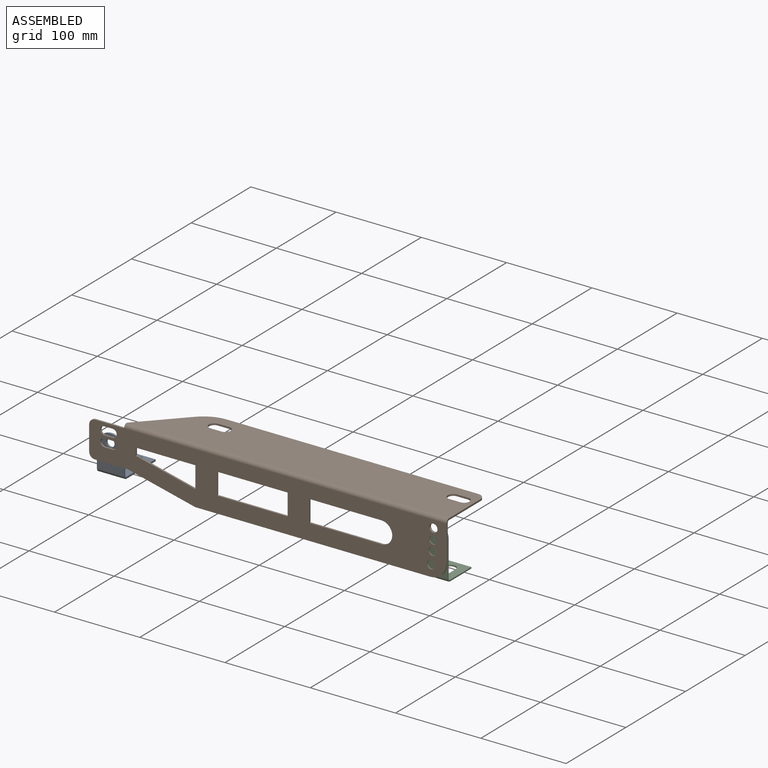
[diagram: assembled view]
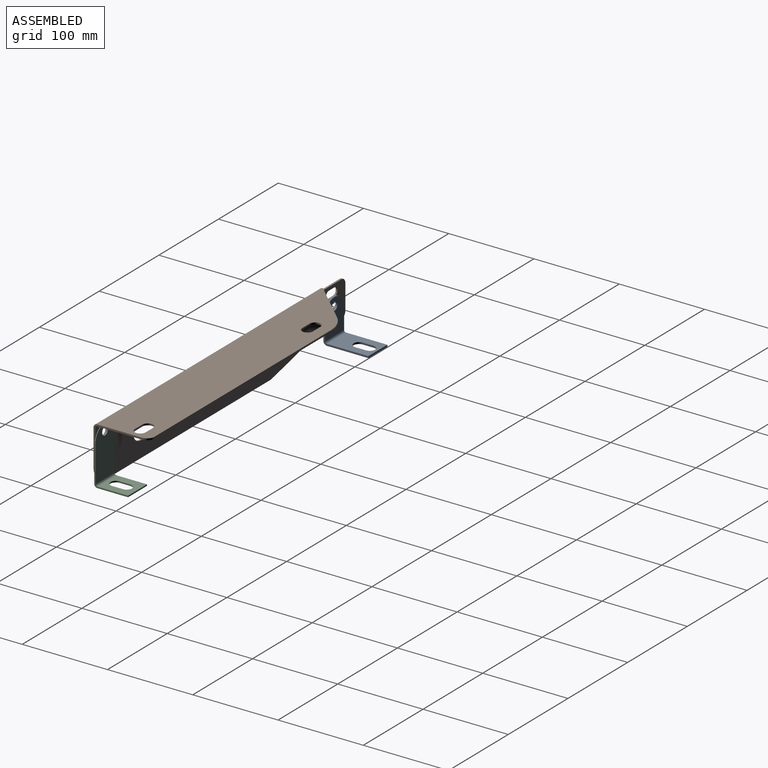
[diagram: assembled view, second angle]
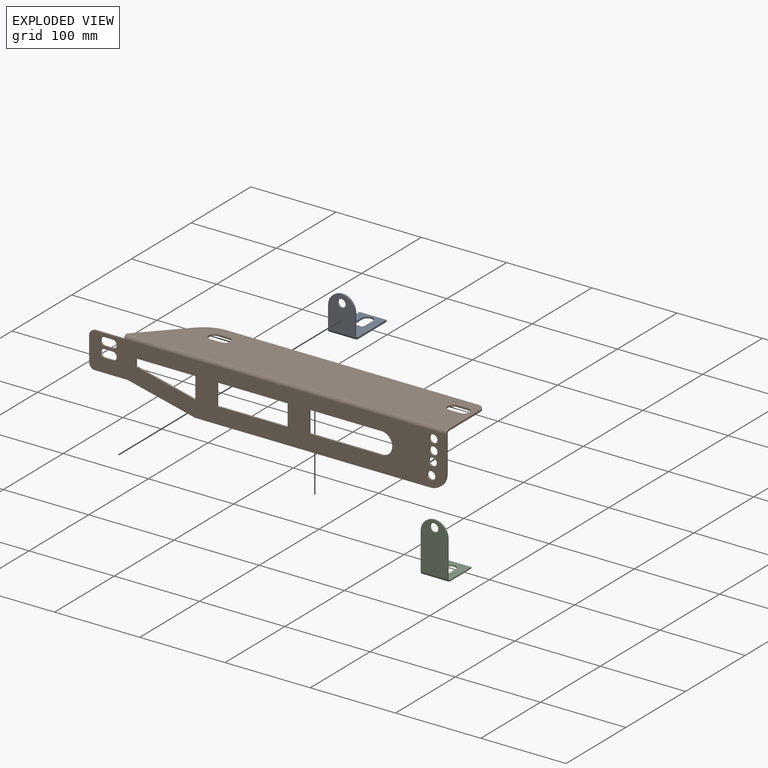
[diagram: exploded view]
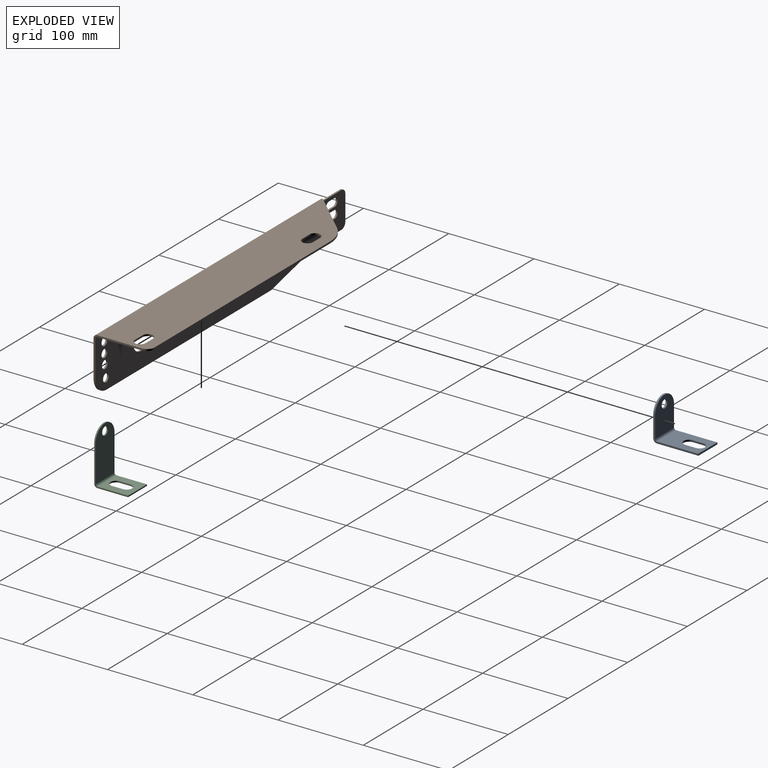
[diagram: exploded view, second angle]
ASSEMBLY  parts=3 mates=2
PART A: 19 faces, bbox 31.8x52.9x45.3 mm
  f0: plane 12.7x2.1mm, normal (-1,0,0), area 26.6mm2, adj f1,f6,f7,f8
  f1: cylinder r=6.35mm len=12.7mm, axis (0,0,-1), area 41.8mm2, adj f0,f2,f7,f8
  f2: plane 12.7x2.1mm, normal (1,0,0), area 26.6mm2, adj f1,f6,f7,f8
  f3: plane 31.75x2.1mm, normal (0,1,0), area 66.5mm2, adj f4,f5,f7,f8
  f4: plane 48.51x2.1mm, normal (1,0,0), area 101.7mm2, adj f3,f7,f8,f15
  f5: plane 48.51x2.1mm, normal (-1,0,0), area 101.7mm2, adj f3,f7,f8,f16
  f6: cylinder r=6.35mm len=12.7mm, axis (0,0,-1), area 41.8mm2, adj f0,f2,f7,f8
  f7: plane 48.51x31.75mm, normal (0,0,-1), area 1252.4mm2, adj f0,f1,f2,f3,f4,f5,f6,f17
  f8: plane 48.51x31.75mm, normal (0,0,1), area 1252.4mm2, adj f0,f1,f2,f3,f4,f5,f6,f18
  f9: plane 25.02x2.1mm, normal (1,0,0), area 52.4mm2, adj f10,f13,f14,f15
  f10: cylinder r=15.88mm len=31.75mm, axis (0,-1,0), area 104.5mm2, adj f9,f11,f13,f14
  f11: plane 25.02x2.1mm, normal (-1,0,0), area 52.4mm2, adj f10,f13,f14,f16
  f12: cylinder r=4.76mm len=9.53mm, axis (0,-1,0), area 62.7mm2, adj f13,f14
  f13: plane 40.89x31.75mm, normal (0,-1,0), area 1119mm2, adj f9,f10,f11,f12,f17
  f14: plane 40.89x31.75mm, normal (0,1,0), area 1119mm2, adj f9,f10,f11,f12,f18
  f15: plane 4.38x4.38mm, normal (1,0,0), area 11mm2, adj f4,f9,f17,f18
  f16: plane 4.38x4.38mm, normal (-1,0,0), area 11mm2, adj f5,f11,f17,f18
  f17: cylinder r=4.38mm len=31.75mm, axis (1,0,0), area 218.5mm2, adj f7,f13,f15,f16
  f18: cylinder r=2.29mm len=31.75mm, axis (1,0,0), area 114mm2, adj f8,f14,f15,f16
PART B: 54 faces, bbox 419.1x65.5x65.6 mm
  f0: plane 38.32x2.03mm, normal (0,0,-1), area 77.9mm2, adj f1,f32,f33,f34
  f1: plane 79.63x19.07mm, normal (-0.23,0,-0.97), area 166.4mm2, adj f0,f2,f33,f34
  f2: plane 275.52x2.03mm, normal (0,0,-1), area 559.9mm2, adj f1,f3,f33,f34
  f3: cylinder r=19.05mm len=19.05mm, axis (0,-1,0), area 60.8mm2, adj f2,f4,f33,f34
  f4: plane 42.16x2.03mm, normal (1,0,0), area 85.7mm2, adj f3,f33,f34,f51
  f5: plane 34.39x2.03mm, normal (0,0,1), area 69.9mm2, adj f6,f33,f34,f50
  f6: cylinder r=6.58mm len=6.58mm, axis (0,-1,0), area 21mm2, adj f5,f7,f33,f34
  f7: plane 29x2.03mm, normal (-1,0,0), area 58.9mm2, adj f6,f32,f33,f34
  f8: cylinder r=12.76mm len=25.51mm, axis (0,-1,0), area 84.9mm2, adj f9,f31,f33,f34
  f9: plane 82.83x2.03mm, normal (0,0,1), area 168.3mm2, adj f8,f10,f33,f34
  f10: plane 25.4x2.03mm, normal (1,0,0), area 51.6mm2, adj f9,f31,f33,f34
  f11: plane 69.87x16.73mm, normal (0.23,0,0.97), area 146mm2, adj f12,f30,f33,f34
  f12: plane 8.67x2.03mm, normal (1,0,0), area 17.6mm2, adj f11,f13,f33,f34
  f13: plane 69.87x2.03mm, normal (0,0,-1), area 142mm2, adj f12,f30,f33,f34
  f14: cylinder r=4.76mm len=9.53mm, axis (0,-1,0), area 30.4mm2, adj f15,f25,f33,f34
  f15: plane 9.53x2.03mm, normal (0,0,1), area 19.4mm2, adj f14,f16,f33,f34
  f16: cylinder r=4.76mm len=9.53mm, axis (0,-1,0), area 30.4mm2, adj f15,f25,f33,f34
  f17: cylinder r=4.76mm len=9.53mm, axis (0,-1,0), area 30.4mm2, adj f18,f24,f33,f34
  f18: plane 9.53x2.03mm, normal (0,0,1), area 19.4mm2, adj f17,f19,f33,f34
  f19: cylinder r=4.76mm len=9.53mm, axis (0,-1,0), area 30.4mm2, adj f18,f24,f33,f34
  f20: plane 25.4x2.03mm, normal (-1,0,0), area 51.6mm2, adj f21,f23,f33,f34
  f21: plane 82.83x2.03mm, normal (0,0,1), area 168.3mm2, adj f20,f22,f33,f34
  f22: plane 25.4x2.03mm, normal (1,0,0), area 51.6mm2, adj f21,f23,f33,f34
  f23: plane 82.83x2.03mm, normal (0,0,-1), area 168.3mm2, adj f20,f22,f33,f34
  f24: plane 9.53x2.03mm, normal (0,0,-1), area 19.4mm2, adj f17,f19,f33,f34
  f25: plane 9.53x2.03mm, normal (0,0,-1), area 19.4mm2, adj f14,f16,f33,f34
  f26: cylinder r=4.76mm len=9.53mm, axis (0,-1,0), area 60.8mm2, adj f33,f34
  f27: cylinder r=4.76mm len=9.53mm, axis (0,-1,0), area 60.8mm2, adj f33,f34
  f28: cylinder r=4.76mm len=9.53mm, axis (0,-1,0), area 60.8mm2, adj f33,f34
  f29: cylinder r=4.76mm len=9.53mm, axis (0,-1,0), area 60.8mm2, adj f33,f34
  f30: plane 25.4x2.03mm, normal (-1,0,0), area 51.6mm2, adj f11,f13,f33,f34
  f31: plane 84.52x2.03mm, normal (0,0,-1), area 171.7mm2, adj f8,f10,f33,f34
  f32: cylinder r=6.59mm len=6.59mm, axis (0,-1,0), area 21mm2, adj f0,f7,f33,f34
  f33: plane 419.1x61.24mm, normal (0,-1,0), area 17640.8mm2, adj f0,f1,f2,f3,f4,f5,f6,f7
  f34: plane 419.1x61.24mm, normal (0,1,0), area 17640.8mm2, adj f0,f1,f2,f3,f4,f5,f6,f7
  f35: plane 52.46x2.03mm, normal (1,0,0), area 106.6mm2, adj f36,f48,f49,f51
  f36: cylinder r=8.75mm len=8.76mm, axis (0,0,1), area 27.9mm2, adj f35,f37,f48,f49
  f37: plane 294.59x2.05mm, normal (0,1,0), area 598.6mm2, adj f36,f38,f48,f49
  f38: cylinder r=39.33mm len=28.59mm, axis (0,0,1), area 65mm2, adj f37,f39,f48,f49
  f39: plane 48.9x46.21mm, normal (-0.73,0.69,0), area 136.7mm2, adj f38,f48,f49,f50
  f40: cylinder r=6.35mm len=12.7mm, axis (0,0,1), area 40.5mm2, adj f41,f47,f48,f49
  f41: plane 12.7x2.03mm, normal (0,1,0), area 25.8mm2, adj f40,f42,f48,f49
  f42: cylinder r=6.35mm len=12.7mm, axis (0,0,1), area 40.5mm2, adj f41,f47,f48,f49
  f43: cylinder r=6.35mm len=12.7mm, axis (0,0,1), area 40.5mm2, adj f44,f46,f48,f49
  f44: plane 12.7x2.03mm, normal (0,1,0), area 25.8mm2, adj f43,f45,f48,f49
  f45: cylinder r=6.35mm len=12.7mm, axis (0,0,1), area 40.5mm2, adj f44,f46,f48,f49
  f46: plane 12.7x2.03mm, normal (0,-1,0), area 25.8mm2, adj f43,f45,f48,f49
  f47: plane 12.7x2.03mm, normal (0,-1,0), area 25.8mm2, adj f40,f42,f48,f49
  f48: plane 378.14x61.21mm, normal (0,0,1), area 20747.2mm2, adj f35,f36,f37,f38,f39,f40,f41,f42
  f49: plane 378.14x61.21mm, normal (0,0,-1), area 20747.2mm2, adj f35,f36,f37,f38,f39,f40,f41,f42
  f50: plane 4.32x4.32mm, normal (-1,0,0), area 10.5mm2, adj f5,f39,f52,f53
  f51: bspline ~4.32x4.32mm, area 10.5mm2, adj f4,f35,f52,f53
  f52: cylinder r=4.32mm len=378.14mm, axis (-1,0,0), area 2564.8mm2, adj f33,f48,f50,f51
  f53: cylinder r=2.29mm len=378.14mm, axis (-1,0,0), area 1357.8mm2, adj f34,f49,f50,f51
PART C: 19 faces, bbox 31.8x39.7x62.5 mm
  f0: plane 35.81x1.59mm, normal (-1,0,0), area 56.9mm2, adj f1,f7,f8,f16
  f1: plane 31.75x1.59mm, normal (0,1,0), area 50.4mm2, adj f0,f6,f7,f8
  f2: plane 12.7x1.59mm, normal (1,0,0), area 20.2mm2, adj f3,f5,f7,f8
  f3: cylinder r=6.35mm len=12.7mm, axis (0,0,1), area 31.7mm2, adj f2,f4,f7,f8
  f4: plane 12.7x1.59mm, normal (-1,0,0), area 20.2mm2, adj f3,f5,f7,f8
  f5: cylinder r=6.35mm len=12.7mm, axis (0,0,1), area 31.7mm2, adj f2,f4,f7,f8
  f6: plane 35.81x1.59mm, normal (1,0,0), area 56.9mm2, adj f1,f7,f8,f15
  f7: plane 35.81x31.75mm, normal (0,0,-1), area 849.1mm2, adj f0,f1,f2,f3,f4,f5,f6,f17
  f8: plane 35.81x31.75mm, normal (0,0,1), area 849.1mm2, adj f0,f1,f2,f3,f4,f5,f6,f18
  f9: plane 42.8x1.59mm, normal (1,0,0), area 67.9mm2, adj f10,f13,f14,f15
  f10: cylinder r=15.88mm len=31.75mm, axis (0,-1,0), area 79.2mm2, adj f9,f11,f13,f14
  f11: plane 42.8x1.59mm, normal (-1,0,0), area 67.9mm2, adj f10,f13,f14,f16
  f12: cylinder r=4.81mm len=9.62mm, axis (0,-1,0), area 48mm2, adj f13,f14
  f13: plane 58.67x31.75mm, normal (0,-1,0), area 1682mm2, adj f9,f10,f11,f12,f17
  f14: plane 58.67x31.75mm, normal (0,1,0), area 1682mm2, adj f9,f10,f11,f12,f18
  f15: plane 3.87x3.87mm, normal (1,0,0), area 7.7mm2, adj f6,f9,f17,f18
  f16: plane 3.87x3.87mm, normal (-1,0,0), area 7.7mm2, adj f0,f11,f17,f18
  f17: cylinder r=3.87mm len=31.75mm, axis (1,0,0), area 193.2mm2, adj f7,f13,f15,f16
  f18: cylinder r=2.29mm len=31.75mm, axis (1,0,0), area 114mm2, adj f8,f14,f15,f16
PLACE A t=(-1160.13,-436.14,282.66)mm
PLACE B t=(624.74,-439.38,323.33)mm
PLACE C t=(79.99,-400.49,262.87)mm
MATE fastened B.f33 <-> A.f12  axis (0,-1,0) through (-1217.67,-441.41,298.55)mm
MATE fastened C.f12 <-> B.f28  axis (0,-1,0) through (-836.67,-439.38,311.21)mm
